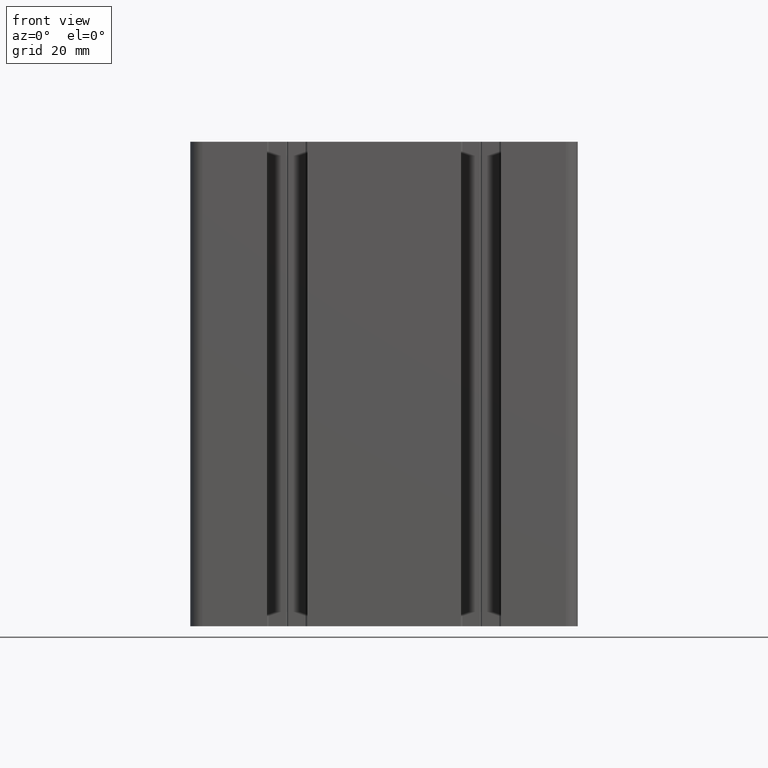
[diagram: clean part render]
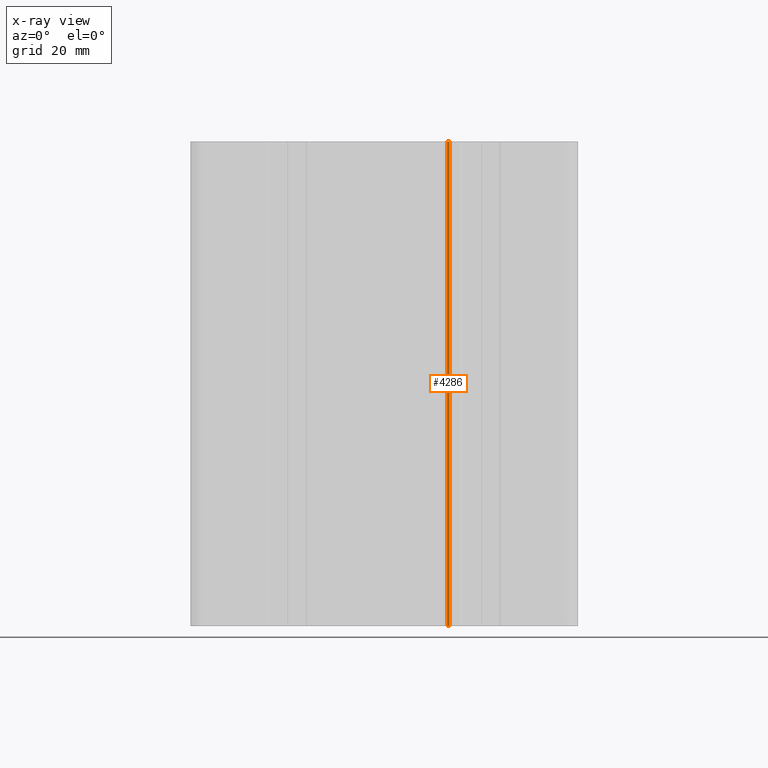
[diagram: x-ray — body ghosted, one internal face saturated and labeled with its STEP entity id]
A machine part, front view, then the same camera in x-ray: the body is ghosted and one INTERNAL B-rep face — a face not visible from any outside direction — is saturated and labeled: STEP entity #4286.
In plain terms, the highlighted cylindrical surface (edge-blend (fillet) strip) has radius 0.25 mm, axis along (0, 0, 1).
Its self-contained STEP definition (entity closure, byte-faithful):
#340=FACE_OUTER_BOUND('',#558,.T.);
#558=EDGE_LOOP('',(#3457,#3458,#3459,#3460));
#986=LINE('',#7014,#1442);
#987=LINE('',#7020,#1443);
#1442=VECTOR('',#5752,100.);
#1443=VECTOR('',#5759,100.);
#1679=CIRCLE('',#4657,0.249999999999986);
#1680=CIRCLE('',#4658,0.249999999999986);
#2055=VERTEX_POINT('',#7010);
#2056=VERTEX_POINT('',#7012);
#2057=VERTEX_POINT('',#7016);
#2058=VERTEX_POINT('',#7018);
#2652=EDGE_CURVE('',#2055,#2056,#986,.T.);
#2653=EDGE_CURVE('',#2057,#2055,#1679,.T.);
#2654=EDGE_CURVE('',#2058,#2056,#1680,.T.);
#2655=EDGE_CURVE('',#2057,#2058,#987,.T.);
#3457=ORIENTED_EDGE('',*,*,#2653,.T.);
#3458=ORIENTED_EDGE('',*,*,#2652,.T.);
#3459=ORIENTED_EDGE('',*,*,#2654,.F.);
#3460=ORIENTED_EDGE('',*,*,#2655,.F.);
#4098=CYLINDRICAL_SURFACE('',#4656,0.249999999999986);
#4286=ADVANCED_FACE('',(#340),#4098,.F.);
#4656=AXIS2_PLACEMENT_3D('',#7015,#5753,#5754);
#4657=AXIS2_PLACEMENT_3D('',#7017,#5755,#5756);
#4658=AXIS2_PLACEMENT_3D('',#7019,#5757,#5758);
#5752=DIRECTION('',(0.,0.,1.));
#5753=DIRECTION('center_axis',(0.,0.,1.));
#5754=DIRECTION('ref_axis',(-1.,0.,0.));
#5755=DIRECTION('center_axis',(0.,0.,-1.));
#5756=DIRECTION('ref_axis',(-1.,0.,0.));
#5757=DIRECTION('center_axis',(0.,0.,-1.));
#5758=DIRECTION('ref_axis',(-1.,0.,0.));
#5759=DIRECTION('',(0.,0.,1.));
#7010=CARTESIAN_POINT('',(13.5,36.5,0.));
#7012=CARTESIAN_POINT('',(13.5,36.5,100.));
#7014=CARTESIAN_POINT('',(13.5,36.5,0.));
#7015=CARTESIAN_POINT('Origin',(13.2500000000001,36.5,0.));
#7016=CARTESIAN_POINT('',(13.0000000000001,36.5,0.));
#7017=CARTESIAN_POINT('Origin',(13.2500000000001,36.5,0.));
#7018=CARTESIAN_POINT('',(13.0000000000001,36.5,100.));
#7019=CARTESIAN_POINT('Origin',(13.2500000000001,36.5,100.));
#7020=CARTESIAN_POINT('',(13.0000000000001,36.5,0.));